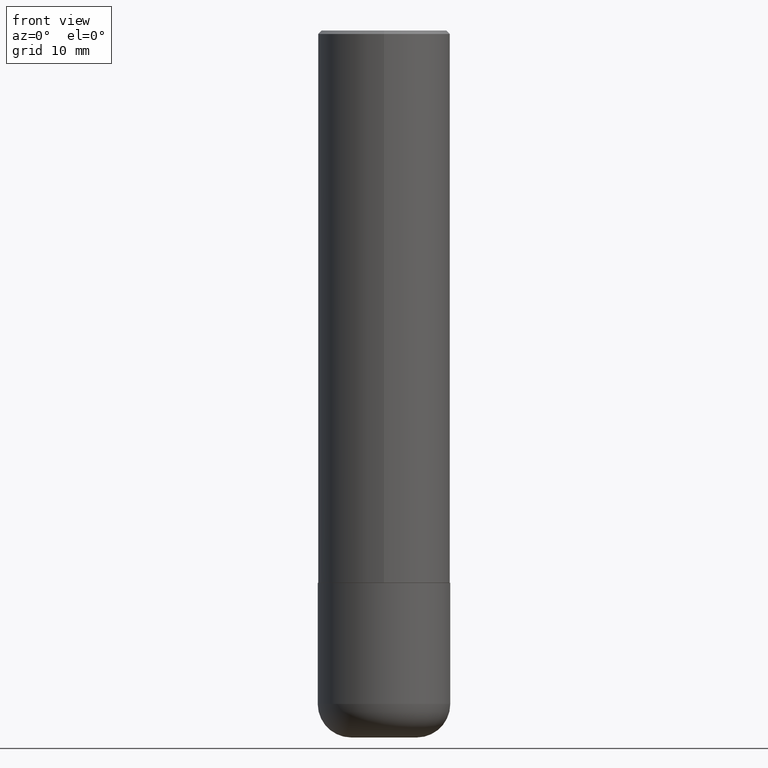
[diagram: clean part render]
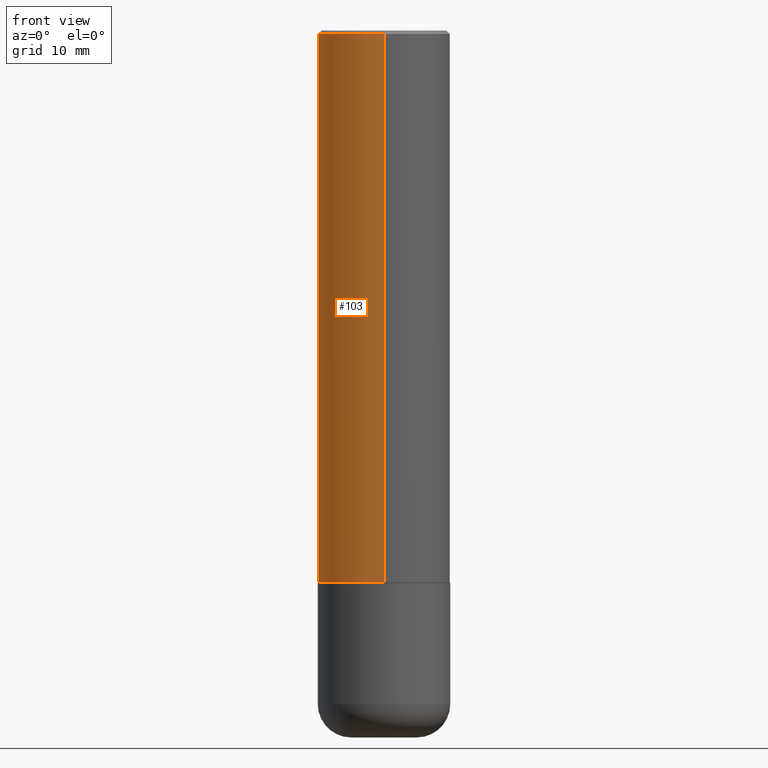
[diagram: same view with one face highlighted and labeled with its STEP entity id]
A machine part, front view. The second image highlights one B-rep face of the part: STEP entity #103.
In plain terms, the highlighted cylindrical surface (partial cylindrical patch) has radius 9.525 mm, axis along (-0, 0, 1).
Its self-contained STEP definition (entity closure, byte-faithful):
#14 = CIRCLE ( 'NONE', #241, 0.3750000000000003886 ) ;
#28 = VERTEX_POINT ( 'NONE', #86 ) ;
#34 = EDGE_CURVE ( 'NONE', #28, #208, #215, .T. ) ;
#46 = EDGE_LOOP ( 'NONE', ( #172, #160, #322, #155 ) ) ;
#58 = CARTESIAN_POINT ( 'NONE',  ( 2.664535259100376486E-15, 0.3750000000000001665, -1.309022214413172797E-15 ) ) ;
#81 = DIRECTION ( 'NONE',  ( -2.445996322747269804E-29, 3.490725905101792415E-15, 1.000000000000000000 ) ) ;
#86 = CARTESIAN_POINT ( 'NONE',  ( 2.618611004132350016E-15, 0.3749999999999998890, -0.02000000000000139513 ) ) ;
#87 = CYLINDRICAL_SURFACE ( 'NONE', #316, 0.3750000000000001665 ) ;
#90 = CARTESIAN_POINT ( 'NONE',  ( -2.618611004132351200E-15, -0.3750000000000001665, 1.309022214413172797E-15 ) ) ;
#95 = CARTESIAN_POINT ( 'NONE',  ( 2.664535259100415534E-15, 0.3749999999999894529, -3.124000000000001442 ) ) ;
#103 = ADVANCED_FACE ( 'NONE', ( #259 ), #87, .T. ) ;
#133 = EDGE_CURVE ( 'NONE', #369, #208, #371, .T. ) ;
#155 = ORIENTED_EDGE ( 'NONE', *, *, #34, .F. ) ;
#160 = ORIENTED_EDGE ( 'NONE', *, *, #391, .T. ) ;
#172 = ORIENTED_EDGE ( 'NONE', *, *, #286, .F. ) ;
#185 = DIRECTION ( 'NONE',  ( -2.445996322747270084E-29, 3.490725905101792021E-15, 1.000000000000000000 ) ) ;
#203 = CARTESIAN_POINT ( 'NONE',  ( 4.891992645494561398E-31, -6.981451810203614264E-17, -0.02000000000000008715 ) ) ;
#204 = CARTESIAN_POINT ( 'NONE',  ( 0.000000000000000000, 0.000000000000000000, 0.000000000000000000 ) ) ;
#207 = DIRECTION ( 'NONE',  ( -2.445996322747270084E-29, 3.490725905101792021E-15, 1.000000000000000000 ) ) ;
#208 = VERTEX_POINT ( 'NONE', #418 ) ;
#215 = CIRCLE ( 'NONE', #278, 0.3749999999999999445 ) ;
#241 = AXIS2_PLACEMENT_3D ( 'NONE', #291, #81, #257 ) ;
#244 = VERTEX_POINT ( 'NONE', #95 ) ;
#257 = DIRECTION ( 'NONE',  ( -6.982962677686265922E-15, -1.000000000000000000, 2.913971193241877611E-15 ) ) ;
#259 = FACE_OUTER_BOUND ( 'NONE', #46, .T. ) ;
#278 = AXIS2_PLACEMENT_3D ( 'NONE', #203, #299, #297 ) ;
#286 = EDGE_CURVE ( 'NONE', #244, #28, #345, .T. ) ;
#289 = VECTOR ( 'NONE', #185, 39.37007874015748143 ) ;
#291 = CARTESIAN_POINT ( 'NONE',  ( 7.641292512262471991E-29, -1.090502772753799986E-14, -3.124000000000000554 ) ) ;
#296 = VECTOR ( 'NONE', #207, 39.37007874015748143 ) ;
#297 = DIRECTION ( 'NONE',  ( -6.982962677686266711E-15, -1.000000000000000000, 3.494488891895537218E-15 ) ) ;
#299 = DIRECTION ( 'NONE',  ( -2.445996322747269804E-29, 3.490725905101792415E-15, 1.000000000000000000 ) ) ;
#316 = AXIS2_PLACEMENT_3D ( 'NONE', #204, #395, #337 ) ;
#322 = ORIENTED_EDGE ( 'NONE', *, *, #133, .T. ) ;
#337 = DIRECTION ( 'NONE',  ( -6.982962677686266711E-15, -1.000000000000000000, 3.490725905101792415E-15 ) ) ;
#345 = LINE ( 'NONE', #58, #289 ) ;
#354 = CARTESIAN_POINT ( 'NONE',  ( -2.618611004132276258E-15, -0.3750000000000113243, -3.123999999999999222 ) ) ;
#369 = VERTEX_POINT ( 'NONE', #354 ) ;
#371 = LINE ( 'NONE', #90, #296 ) ;
#391 = EDGE_CURVE ( 'NONE', #244, #369, #14, .T. ) ;
#395 = DIRECTION ( 'NONE',  ( -2.445996322747269804E-29, 3.490725905101792415E-15, 1.000000000000000000 ) ) ;
#418 = CARTESIAN_POINT ( 'NONE',  ( -2.572686749164323153E-15, -0.3750000000000000555, -0.01999999999999877570 ) ) ;